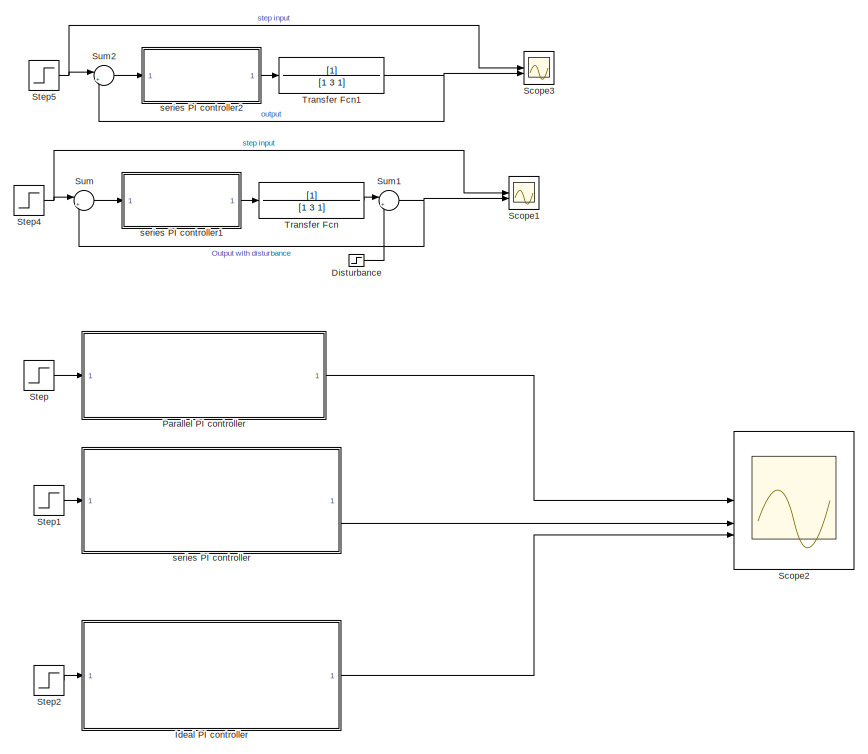
[diagram: root canvas - part 1/2, full width, top band]
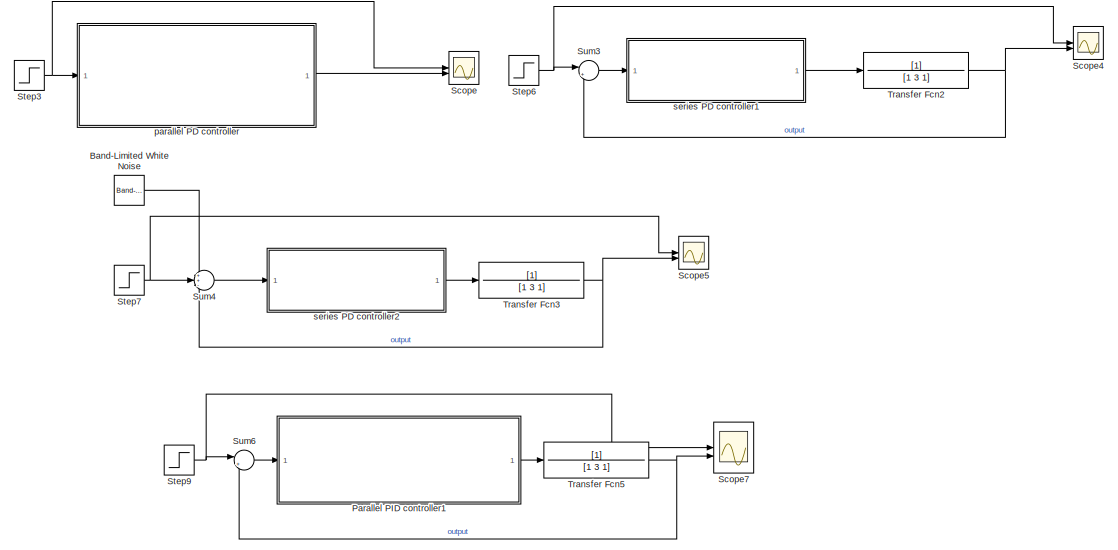
[diagram: root canvas - part 2/2, full width, bottom band]
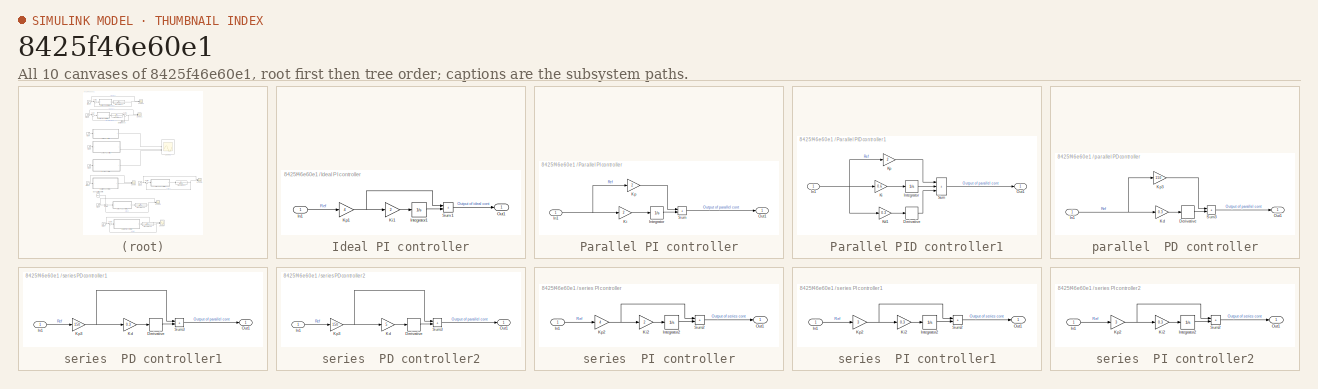
[diagram: thumbnail index - all 10 canvases of the model, root first then tree order]
MODEL slx_8425f46e60e1
KIND model
CONFIG AbsTol = auto
CONFIG EnableMultiTasking = off
CONFIG FixedStep = auto
CONFIG MaxStep = auto
CONFIG MinStep = auto
CONFIG RelTol = 1e-3
CONFIG SampleTimeConstraint = Unconstrained
CONFIG SolverName = VariableStepAuto
CONFIG StartTime = 0.0
CONFIG StopTime = 20
BLOCK [Reference] Band-Limited White Noise  REF=simulink/Sources/Band-Limited
White Noise
  SourceBlock = simulink/Sources/Band-Limited\nWhite Noise
  SourceType = Band-Limited White Noise.
BLOCK [Step] Disturbance
  After = .3
  SampleTime = 0
  Time = 5
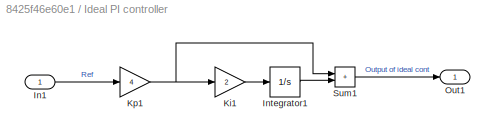
BLOCK [SubSystem] Ideal PI controller
BLOCK [Inport] Ideal PI controller/In1
BLOCK [Integrator] Ideal PI controller/Integrator1
BLOCK [Gain] Ideal PI controller/Ki1
  Gain = 2
BLOCK [Gain] Ideal PI controller/Kp1
  Gain = 4
BLOCK [Outport] Ideal PI controller/Out1
BLOCK [Sum] Ideal PI controller/Sum1
  IconShape = rectangular
  Inputs = +|+
BLOCK [SubSystem] Parallel PI controller
BLOCK [Inport] Parallel PI controller/In1
BLOCK [Integrator] Parallel PI controller/Integrator
BLOCK [Gain] Parallel PI controller/Ki
  Gain = 2
BLOCK [Gain] Parallel PI controller/Kp
  Gain = 2
BLOCK [Outport] Parallel PI controller/Out1
BLOCK [Sum] Parallel PI controller/Sum
  IconShape = rectangular
  Inputs = +|+
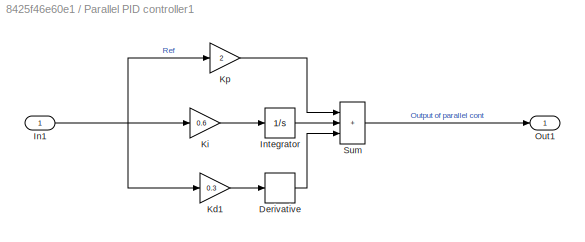
BLOCK [SubSystem] Parallel PID controller1
BLOCK [Derivative] Parallel PID controller1/Derivative
BLOCK [Inport] Parallel PID controller1/In1
BLOCK [Integrator] Parallel PID controller1/Integrator
BLOCK [Gain] Parallel PID controller1/Kd1
  Gain = 0.3
BLOCK [Gain] Parallel PID controller1/Ki
  Gain = 0.6
BLOCK [Gain] Parallel PID controller1/Kp
  Gain = 2
BLOCK [Outport] Parallel PID controller1/Out1
BLOCK [Sum] Parallel PID controller1/Sum
  IconShape = rectangular
  Inputs = +++
BLOCK [Scope] Scope
  Floating = off
  NumInputPorts = 2
  ScopeSpecificationString = Simulink.scopes.TimeScopeBlockCfg('CurrentConfiguration', extmgr.ConfigurationSet(extmgr.Configuration('Core','General UI',true),extmgr.Configuration('Core','Source UI',true),extmgr.Configuration('Sources','WiredSimulink',true),extmgr.Configuration('Visuals','Time Domain',true,'SerializedDisplays',{struct('MinYLimReal','-5277655813343.54883','MaxYLimReal','47498902320091.94531','YLabelReal','','Mi...<+1563ch>
BLOCK [Scope] Scope1
  Floating = off
  NumInputPorts = 2
  ScopeSpecificationString = Simulink.scopes.TimeScopeBlockCfg('CurrentConfiguration', extmgr.ConfigurationSet(extmgr.Configuration('Core','General UI',true),extmgr.Configuration('Core','Source UI',true),extmgr.Configuration('Sources','WiredSimulink',true,'DataLoggingVariableName','ScopeData1'),extmgr.Configuration('Visuals','Time Domain',true,'SerializedDisplays',{struct('MinYLimReal','-0.125','MaxYLimReal','1.125','YLabelRe...<+1495ch>
BLOCK [Scope] Scope2
  Floating = off
  NumInputPorts = 3
  ScopeSpecificationString = Simulink.scopes.TimeScopeBlockCfg('CurrentConfiguration', extmgr.ConfigurationSet(extmgr.Configuration('Core','General UI',true),extmgr.Configuration('Core','Source UI',true),extmgr.Configuration('Sources','WiredSimulink',true,'DataLoggingVariableName','ScopeData2'),extmgr.Configuration('Visuals','Time Domain',true,'SerializedDisplays',{struct('MinYLimReal','-19.5','MaxYLimReal','175.5','YLabelRea...<+1646ch>
BLOCK [Scope] Scope3
  Floating = off
  NumInputPorts = 2
  ScopeSpecificationString = Simulink.scopes.TimeScopeBlockCfg('CurrentConfiguration', extmgr.ConfigurationSet(extmgr.Configuration('Core','General UI',true),extmgr.Configuration('Core','Source UI',true),extmgr.Configuration('Sources','WiredSimulink',true,'DataLoggingVariableName','ScopeData3'),extmgr.Configuration('Visuals','Time Domain',true,'SerializedDisplays',{struct('MinYLimReal','-0.125','MaxYLimReal','1.125','YLabelRe...<+1478ch>
BLOCK [Scope] Scope4
  Floating = off
  NumInputPorts = 2
  ScopeSpecificationString = Simulink.scopes.TimeScopeBlockCfg('CurrentConfiguration', extmgr.ConfigurationSet(extmgr.Configuration('Core','General UI',true),extmgr.Configuration('Core','Source UI',true),extmgr.Configuration('Sources','WiredSimulink',true,'DataLoggingVariableName','ScopeData4'),extmgr.Configuration('Visuals','Time Domain',true,'SerializedDisplays',{struct('MinYLimReal','-0.125','MaxYLimReal','1.125','YLabelRe...<+1820ch>
BLOCK [Scope] Scope5
  Floating = off
  NumInputPorts = 2
  ScopeSpecificationString = Simulink.scopes.TimeScopeBlockCfg('CurrentConfiguration', extmgr.ConfigurationSet(extmgr.Configuration('Core','General UI',true),extmgr.Configuration('Core','Source UI',true),extmgr.Configuration('Sources','WiredSimulink',true,'DataLoggingVariableName','ScopeData5'),extmgr.Configuration('Visuals','Time Domain',true,'SerializedDisplays',{struct('MinYLimReal','-0.13335','MaxYLimReal','1.20016','YLab...<+1832ch>
BLOCK [Scope] Scope7
  Floating = off
  NumInputPorts = 2
  ScopeSpecificationString = Simulink.scopes.TimeScopeBlockCfg('CurrentConfiguration', extmgr.ConfigurationSet(extmgr.Configuration('Core','General UI',true),extmgr.Configuration('Core','Source UI',true),extmgr.Configuration('Sources','WiredSimulink',true,'DataLoggingVariableName','ScopeData7'),extmgr.Configuration('Visuals','Time Domain',true,'SerializedDisplays',{struct('MinYLimReal','0.87663','MaxYLimReal','1.05012','YLabe...<+1576ch>
BLOCK [Step] Step
  SampleTime = 0
BLOCK [Step] Step1
  SampleTime = 0
BLOCK [Step] Step2
  SampleTime = 0
BLOCK [Step] Step3
  SampleTime = 0
BLOCK [Step] Step4
  SampleTime = 0
BLOCK [Step] Step5
  SampleTime = 0
BLOCK [Step] Step6
  SampleTime = 0
BLOCK [Step] Step7
  SampleTime = 0
BLOCK [Step] Step9
  SampleTime = 0
BLOCK [Sum] Sum
  Inputs = |+-
BLOCK [Sum] Sum1
  Inputs = |+-
BLOCK [Sum] Sum2
  Inputs = |+-
BLOCK [Sum] Sum3
  Inputs = |+-
BLOCK [Sum] Sum4
  Inputs = ++-
BLOCK [Sum] Sum6
  Inputs = |+-
BLOCK [TransferFcn] Transfer Fcn
  Denominator = [1 3 1]
BLOCK [TransferFcn] Transfer Fcn1
  Denominator = [1 3 1]
BLOCK [TransferFcn] Transfer Fcn2
  Denominator = [1 3 1]
BLOCK [TransferFcn] Transfer Fcn3
  Denominator = [1 3 1]
BLOCK [TransferFcn] Transfer Fcn5
  Denominator = [1 3 1]
BLOCK [SubSystem] parallel  PD controller
BLOCK [Derivative] parallel  PD controller/Derivative
BLOCK [Inport] parallel  PD controller/In1
BLOCK [Gain] parallel  PD controller/Kd
  Gain = 0.3
BLOCK [Gain] parallel  PD controller/Kp3
  Gain = 150
BLOCK [Outport] parallel  PD controller/Out1
BLOCK [Sum] parallel  PD controller/Sum3
  IconShape = rectangular
  Inputs = +|+
BLOCK [SubSystem] series  PD controller1
BLOCK [Derivative] series  PD controller1/Derivative
BLOCK [Inport] series  PD controller1/In1
BLOCK [Gain] series  PD controller1/Kd
  Gain = 0.3
BLOCK [Gain] series  PD controller1/Kp3
  Gain = 150
BLOCK [Outport] series  PD controller1/Out1
BLOCK [Sum] series  PD controller1/Sum3
  IconShape = rectangular
  Inputs = +|+
BLOCK [SubSystem] series  PD controller2
BLOCK [Derivative] series  PD controller2/Derivative
BLOCK [Inport] series  PD controller2/In1
BLOCK [Gain] series  PD controller2/Kd
  Gain = 5
BLOCK [Gain] series  PD controller2/Kp3
  Gain = 150
BLOCK [Outport] series  PD controller2/Out1
BLOCK [Sum] series  PD controller2/Sum3
  IconShape = rectangular
  Inputs = +|+
BLOCK [SubSystem] series  PI controller
BLOCK [Inport] series  PI controller/In1
BLOCK [Integrator] series  PI controller/Integrator2
BLOCK [Gain] series  PI controller/Ki2
  Gain = 2
BLOCK [Gain] series  PI controller/Kp2
  Gain = 4
BLOCK [Outport] series  PI controller/Out1
BLOCK [Sum] series  PI controller/Sum2
  IconShape = rectangular
  Inputs = +|+
BLOCK [SubSystem] series  PI controller1
BLOCK [Inport] series  PI controller1/In1
BLOCK [Integrator] series  PI controller1/Integrator2
BLOCK [Gain] series  PI controller1/Ki2
  Gain = 0.3
BLOCK [Gain] series  PI controller1/Kp2
  Gain = 3
BLOCK [Outport] series  PI controller1/Out1
BLOCK [Sum] series  PI controller1/Sum2
  IconShape = rectangular
  Inputs = +|+
BLOCK [SubSystem] series  PI controller2
BLOCK [Inport] series  PI controller2/In1
BLOCK [Integrator] series  PI controller2/Integrator2
BLOCK [Gain] series  PI controller2/Ki2
  Gain = 0.3
BLOCK [Gain] series  PI controller2/Kp2
  Gain = 3
BLOCK [Outport] series  PI controller2/Out1
BLOCK [Sum] series  PI controller2/Sum2
  IconShape = rectangular
  Inputs = +|+
LINE Band-Limited White Noise:1 -> Sum4:1
LINE Disturbance:1 -> Sum1:2
LINE Ideal PI controller/In1:1 -> Ideal PI controller/Kp1:1
LINE Ideal PI controller/Integrator1:1 -> Ideal PI controller/Sum1:2
LINE Ideal PI controller/Ki1:1 -> Ideal PI controller/Integrator1:1
NET Ideal PI controller/Kp1:1 -> Ideal PI controller/Ki1:1, Ideal PI controller/Sum1:1
LINE Ideal PI controller/Sum1:1 -> Ideal PI controller/Out1:1
LINE Ideal PI controller:1 -> Scope2:3
NET Parallel PI controller/In1:1 -> Parallel PI controller/Ki:1, Parallel PI controller/Kp:1
LINE Parallel PI controller/Integrator:1 -> Parallel PI controller/Sum:2
LINE Parallel PI controller/Ki:1 -> Parallel PI controller/Integrator:1
LINE Parallel PI controller/Kp:1 -> Parallel PI controller/Sum:1
LINE Parallel PI controller/Sum:1 -> Parallel PI controller/Out1:1
LINE Parallel PI controller:1 -> Scope2:1
LINE Parallel PID controller1/Derivative:1 -> Parallel PID controller1/Sum:3
NET Parallel PID controller1/In1:1 -> Parallel PID controller1/Kd1:1, Parallel PID controller1/Ki:1, Parallel PID controller1/Kp:1
LINE Parallel PID controller1/Integrator:1 -> Parallel PID controller1/Sum:2
LINE Parallel PID controller1/Kd1:1 -> Parallel PID controller1/Derivative:1
LINE Parallel PID controller1/Ki:1 -> Parallel PID controller1/Integrator:1
LINE Parallel PID controller1/Kp:1 -> Parallel PID controller1/Sum:1
LINE Parallel PID controller1/Sum:1 -> Parallel PID controller1/Out1:1
LINE Parallel PID controller1:1 -> Transfer Fcn5:1
LINE Step1:1 -> series  PI controller:1
LINE Step2:1 -> Ideal PI controller:1
NET Step3:1 -> Scope:1, parallel  PD controller:1
NET Step4:1 -> Scope1:1, Sum:1
NET Step5:1 -> Scope3:1, Sum2:1
NET Step6:1 -> Scope4:1, Sum3:1
NET Step7:1 -> Scope5:1, Sum4:2
NET Step9:1 -> Scope7:1, Sum6:1
LINE Step:1 -> Parallel PI controller:1
NET Sum1:1 -> Scope1:2, Sum:2
LINE Sum2:1 -> series  PI controller2:1
LINE Sum3:1 -> series  PD controller1:1
LINE Sum4:1 -> series  PD controller2:1
LINE Sum6:1 -> Parallel PID controller1:1
LINE Sum:1 -> series  PI controller1:1
NET Transfer Fcn1:1 -> Scope3:2, Sum2:2
NET Transfer Fcn2:1 -> Scope4:2, Sum3:2
NET Transfer Fcn3:1 -> Scope5:2, Sum4:3
NET Transfer Fcn5:1 -> Scope7:2, Sum6:2
LINE Transfer Fcn:1 -> Sum1:1
LINE parallel  PD controller/Derivative:1 -> parallel  PD controller/Sum3:2
NET parallel  PD controller/In1:1 -> parallel  PD controller/Kd:1, parallel  PD controller/Kp3:1
LINE parallel  PD controller/Kd:1 -> parallel  PD controller/Derivative:1
LINE parallel  PD controller/Kp3:1 -> parallel  PD controller/Sum3:1
LINE parallel  PD controller/Sum3:1 -> parallel  PD controller/Out1:1
LINE parallel  PD controller:1 -> Scope:2
LINE series  PD controller1/Derivative:1 -> series  PD controller1/Sum3:2
LINE series  PD controller1/In1:1 -> series  PD controller1/Kp3:1
LINE series  PD controller1/Kd:1 -> series  PD controller1/Derivative:1
NET series  PD controller1/Kp3:1 -> series  PD controller1/Kd:1, series  PD controller1/Sum3:1
LINE series  PD controller1/Sum3:1 -> series  PD controller1/Out1:1
LINE series  PD controller1:1 -> Transfer Fcn2:1
LINE series  PD controller2/Derivative:1 -> series  PD controller2/Sum3:2
LINE series  PD controller2/In1:1 -> series  PD controller2/Kp3:1
LINE series  PD controller2/Kd:1 -> series  PD controller2/Derivative:1
NET series  PD controller2/Kp3:1 -> series  PD controller2/Kd:1, series  PD controller2/Sum3:1
LINE series  PD controller2/Sum3:1 -> series  PD controller2/Out1:1
LINE series  PD controller2:1 -> Transfer Fcn3:1
LINE series  PI controller/In1:1 -> series  PI controller/Kp2:1
LINE series  PI controller/Integrator2:1 -> series  PI controller/Sum2:2
LINE series  PI controller/Ki2:1 -> series  PI controller/Integrator2:1
NET series  PI controller/Kp2:1 -> series  PI controller/Ki2:1, series  PI controller/Sum2:1
LINE series  PI controller/Sum2:1 -> series  PI controller/Out1:1
LINE series  PI controller1/In1:1 -> series  PI controller1/Kp2:1
LINE series  PI controller1/Integrator2:1 -> series  PI controller1/Sum2:2
LINE series  PI controller1/Ki2:1 -> series  PI controller1/Integrator2:1
NET series  PI controller1/Kp2:1 -> series  PI controller1/Ki2:1, series  PI controller1/Sum2:1
LINE series  PI controller1/Sum2:1 -> series  PI controller1/Out1:1
LINE series  PI controller1:1 -> Transfer Fcn:1
LINE series  PI controller2/In1:1 -> series  PI controller2/Kp2:1
LINE series  PI controller2/Integrator2:1 -> series  PI controller2/Sum2:2
LINE series  PI controller2/Ki2:1 -> series  PI controller2/Integrator2:1
NET series  PI controller2/Kp2:1 -> series  PI controller2/Ki2:1, series  PI controller2/Sum2:1
LINE series  PI controller2/Sum2:1 -> series  PI controller2/Out1:1
LINE series  PI controller2:1 -> Transfer Fcn1:1
LINE series  PI controller:1 -> Scope2:2
note: NET lines group one-source signal fan-out (src -> all destinations, sorted); 1:1 wires keep LINE
